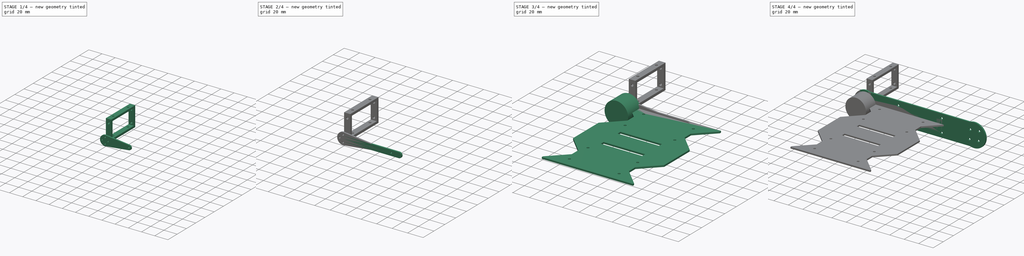
[diagram: build sequence overview — one tinted view per stage of 4, left to right]
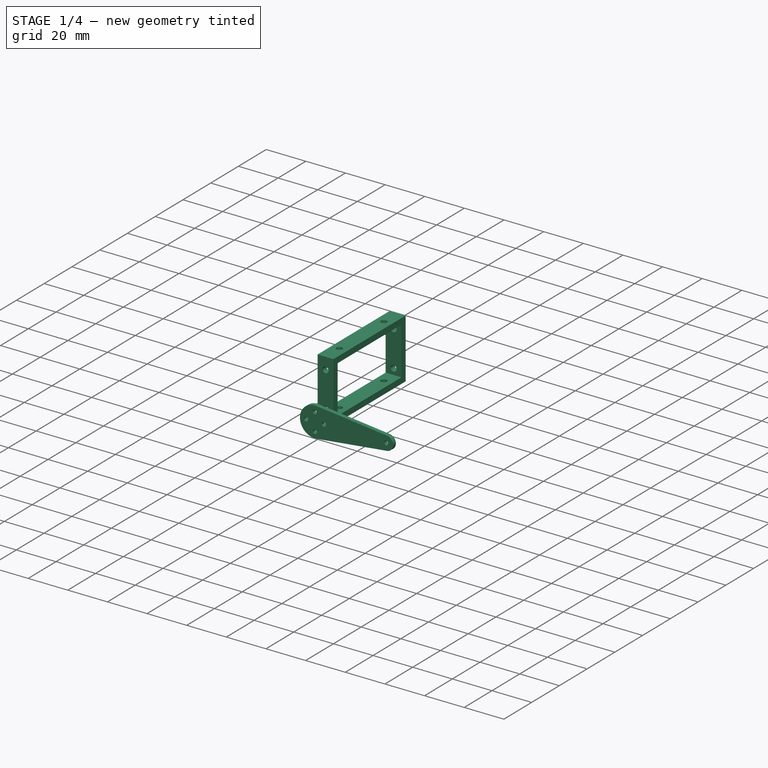
[diagram: stage 1 of 4 — iso view after this stage's code; geometry added in this stage tinted green]
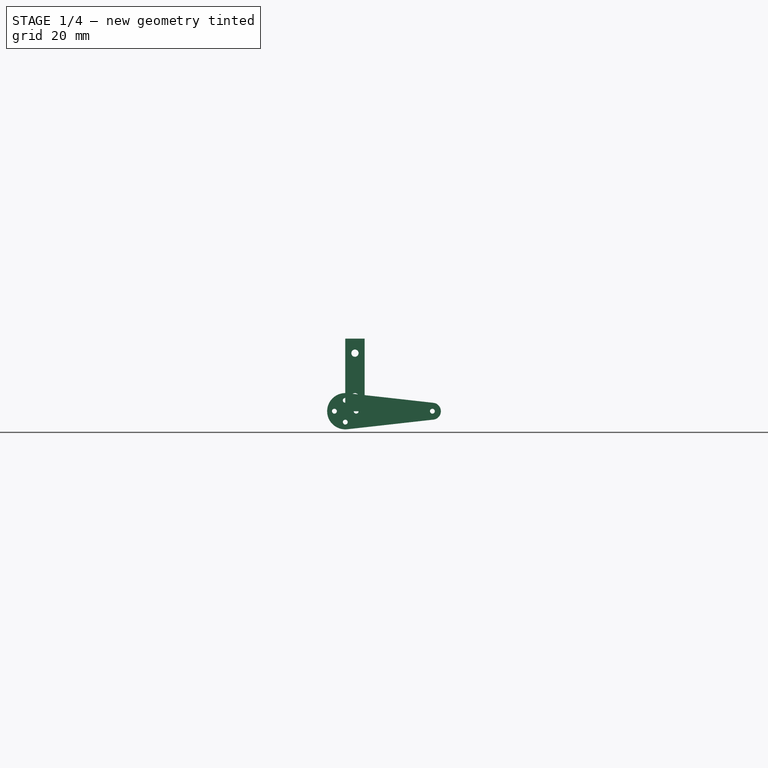
[diagram: stage 1 of 4 — front view after this stage's code; geometry added in this stage tinted green]
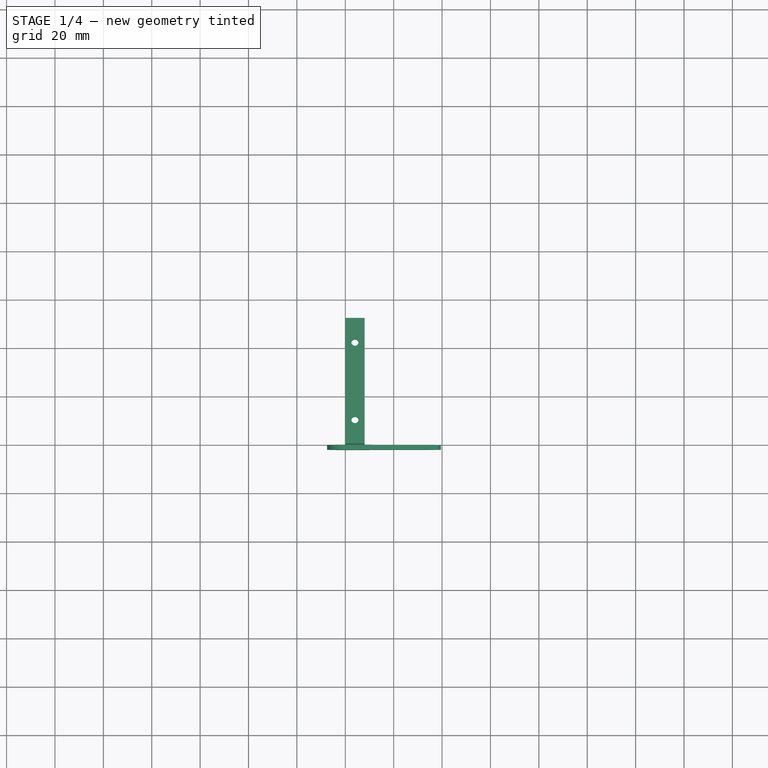
[diagram: stage 1 of 4 — top view after this stage's code; geometry added in this stage tinted green]
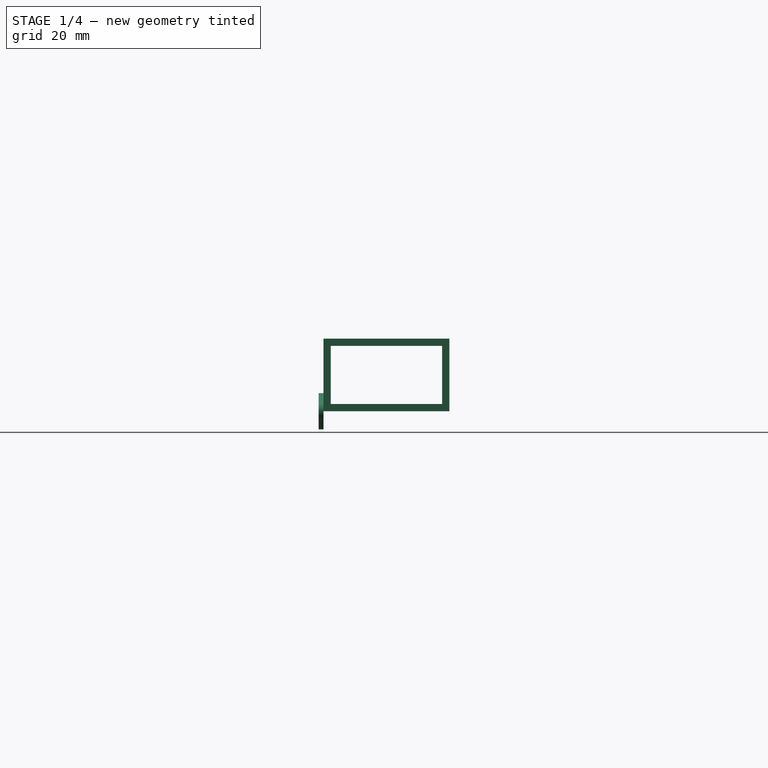
[diagram: stage 1 of 4 — right view after this stage's code; geometry added in this stage tinted green]
FCSTD DOCUMENT  (FreeCAD 0.18R16158 (Git))
Label: lorcan_mini
License: All rights reserved
LicenseURL: http://en.wikipedia.org/wiki/All_rights_reserved
objects: Sketcher::SketchObject×14, PartDesign::Pad×12, PartDesign::Body×12, App::Part×12, App::DocumentObjectGroup×2, PartDesign::Pocket×2
note: 54 computed .brp shape members not serialized (recipe doc carries the construction recipe); baked Part::Feature solids carry a one-line shape summary decoded from their .brp

FEATURE [PartDesign::Body] Body009
  Group = -> [Sketch009,Pad009]
  Origin = -> Origin019
  Tip = -> Pad009
FEATURE [App::Part] Part009  label="tibia2"
  Group = -> [Body009]
  Origin = -> Origin018
  Placement = pos=(-35.9973,-28,0.16315) rot=(0,-1,0;5.32325rad)
FEATURE [Sketcher::SketchObject] Sketch010
  MapMode = 5
  Placement = pos=(0,0,0) rot=(1,0,0;1.5708rad)
  Support = -> [XZ_Plane021]
  sketch-geometry (15):
    g0: Circle CenterX=-4.5 CenterY=0 CenterZ=0 NormalX=0 NormalY=0 NormalZ=1 AngleXU=0 Radius=1
    g1: Circle CenterX=4.5 CenterY=0 CenterZ=0 NormalX=0 NormalY=0 NormalZ=1 AngleXU=0 Radius=1
    g2: Circle CenterX=0 CenterY=4.5 CenterZ=0 NormalX=0 NormalY=0 NormalZ=1 AngleXU=0 Radius=1
    g3: Circle CenterX=0 CenterY=-4.5 CenterZ=0 NormalX=0 NormalY=0 NormalZ=1 AngleXU=0 Radius=1
    g4: LineSegment [constr] StartX=0 StartY=4.5 StartZ=0 EndX=0 EndY=-4.5 EndZ=0
    g5: LineSegment [constr] StartX=-4.5 StartY=0 StartZ=0 EndX=4.5 EndY=0 EndZ=0
    g6: LineSegment [constr] StartX=-4.5 StartY=0 StartZ=0 EndX=0 EndY=4.5 EndZ=0
    g7: LineSegment [constr] StartX=0 StartY=4.5 StartZ=0 EndX=4.5 EndY=0 EndZ=0
    g8: LineSegment [constr] StartX=4.5 StartY=0 StartZ=0 EndX=0 EndY=-4.5 EndZ=0
    g9: LineSegment [constr] StartX=0 StartY=-4.5 StartZ=0 EndX=-4.5 EndY=0 EndZ=0
    g10: ArcOfCircle CenterX=0 CenterY=0 CenterZ=0 NormalX=0 NormalY=0 NormalZ=1 AngleXU=0 Radius=7.5 StartAngle=1.45945 EndAngle=4.82373
    g11: LineSegment StartX=0.833363 StartY=7.45356 StartZ=0 EndX=36.3889 EndY=3.47833 EndZ=0
    g12: LineSegment StartX=0.833363 StartY=-7.45356 StartZ=0 EndX=36.3889 EndY=-3.47833 EndZ=0
    g13: ArcOfCircle CenterX=36 CenterY=0 CenterZ=0 NormalX=0 NormalY=0 NormalZ=1 AngleXU=0 Radius=3.5 StartAngle=4.82372 EndAngle=7.74265
    g14: Circle CenterX=36 CenterY=0 CenterZ=0 NormalX=0 NormalY=0 NormalZ=1 AngleXU=0 Radius=1
  constraints (39):
    c: Radius(g2) = 1
    c: Radius(g1) = 1
    c: Radius(g3) = 1
    c: Radius(g0) = 1
    c: Coincident(g1,g5)
    c: Coincident(g0,g5)
    c: Coincident(g2,g4)
    c: Coincident(g3,g4)
    c: Perpendicular(g5,g4)
    c: Parallel(g4,g-2)
    c: PointOnObject(g-1,g4)
    c: PointOnObject(g-1,g5)
    c: Coincident(g0,g9)
    c: Coincident(g0,g6)
    c: Coincident(g2,g6)
    c: Coincident(g2,g7)
    c: Coincident(g1,g7)
    c: Coincident(g1,g8)
    c: Coincident(g3,g8)
    c: Coincident(g3,g9)
    c: Equal(g7,g9)
    c: Equal(g6,g8)
    c: Perpendicular(g8,g7)
    c: DistanceX(g0,g1) = 9
    c: Coincident(g12,g13)
    c: Coincident(g11,g13)
    c: Coincident(g10,g11)
    c: Coincident(g10,g12)
    c: Coincident(g10,g-1)
    c: Tangent(g13,g11)
    c: Tangent(g13,g12)
    c: Tangent(g12,g10)
    c: Tangent(g11,g10)
    c: PointOnObject(g13,g-1)
    c: DistanceX(g10,g13) = 36
    c: Radius(g10) = 7.5
    c: Radius(g13) = 3.5
    c: Coincident(g13,g14)
    c: Radius(g14) = 1
FEATURE [PartDesign::Pad] Pad010
  Length = 2
  Length2 = 100
  Placement = pos=(0,0,0) rot=(1,0,0;1.5708rad)
  Profile = -> Sketch010
  Type = 0
FEATURE [PartDesign::Body] Body010
  Group = -> [Sketch010,Pad010]
  Origin = -> Origin021
  Tip = -> Pad010
FEATURE [App::Part] Part010  label="femur2"
  Group = -> [Body010]
  Origin = -> Origin020
  Placement = pos=(0,-30.5,0) rot=(0,1,0;3.14159rad)
FEATURE [Sketcher::SketchObject] Sketch011
  MapMode = 5
  Placement = pos=(0,0,0) rot=(0.57735,0.57735,0.57735;2.0944rad)
  Support = -> [YZ_Plane023]
  sketch-geometry (8):
    g0: LineSegment StartX=0 StartY=0 StartZ=0 EndX=52 EndY=0 EndZ=0
    g1: LineSegment StartX=52 StartY=0 StartZ=0 EndX=52 EndY=30 EndZ=0
    g2: LineSegment StartX=52 StartY=30 StartZ=0 EndX=0 EndY=30 EndZ=0
    g3: LineSegment StartX=0 StartY=30 StartZ=0 EndX=0 EndY=0 EndZ=0
    g4: LineSegment StartX=3 StartY=3 StartZ=0 EndX=49 EndY=3 EndZ=0
    g5: LineSegment StartX=49 StartY=3 StartZ=0 EndX=49 EndY=27 EndZ=0
    g6: LineSegment StartX=49 StartY=27 StartZ=0 EndX=3 EndY=27 EndZ=0
    g7: LineSegment StartX=3 StartY=27 StartZ=0 EndX=3 EndY=3 EndZ=0
  constraints (23):
    c: Coincident(g0,g1)
    c: Coincident(g1,g2)
    c: Coincident(g2,g3)
    c: Coincident(g3,g0)
    c: Horizontal(g0)
    c: Horizontal(g2)
    c: Vertical(g1)
    c: Vertical(g3)
    c: DistanceY(g3,g3) = 30
    c: DistanceX(g0,g0) = 52
    c: Coincident(g0,g-1)
    c: Coincident(g4,g5)
    c: Coincident(g5,g6)
    c: Coincident(g6,g7)
    c: Coincident(g7,g4)
    c: Horizontal(g4)
    c: Horizontal(g6)
    c: Vertical(g5)
    c: Vertical(g7)
    c: DistanceY(g0,g4) = 3
    c: DistanceY(g5,g1) = 3
    c: DistanceX(g5,g1) = 3
    c: DistanceX(g0,g4) = 3
FEATURE [PartDesign::Pad] Pad011
  Length = 8
  Length2 = 100
  Placement = pos=(0,0,0) rot=(0.57735,0.57735,0.57735;2.0944rad)
  Profile = -> Sketch011
  Type = 0
FEATURE [Sketcher::SketchObject] Sketch012
  ExternalGeometry = -> [Pad011]
  MapMode = 5
  Placement = pos=(2.31e-14,52,-1.73e-14) rot=(0.57735,0.57735,0.57735;4.18879rad)
  Support = -> [Pad011]
  sketch-geometry (2):
    g0: Circle CenterX=6 CenterY=4 CenterZ=0 NormalX=0 NormalY=0 NormalZ=1 AngleXU=0 Radius=1.5
    g1: Circle CenterX=24 CenterY=4 CenterZ=0 NormalX=0 NormalY=0 NormalZ=1 AngleXU=0 Radius=1.5
  constraints (6):
    c: Radius(g1) = 1.5
    c: Radius(g0) = 1.5
    c: DistanceY(g-6,g1) = 4
    c: DistanceY(g-1,g0) = 4
    c: DistanceX(g1,g-4) = 6
    c: DistanceX(g-5,g0) = 6
FEATURE [PartDesign::Pocket] Pocket
  BaseFeature = -> Pad011
  Length = 5
  Length2 = 100
  Placement = pos=(0,0,0) rot=(0.57735,0.57735,0.57735;2.0944rad)
  Profile = -> Sketch012
  Type = 1
FEATURE [Sketcher::SketchObject] Sketch013
  ExternalGeometry = -> [Pocket]
  MapMode = 5
  Placement = pos=(0,0,0) rot=(0.707107,0.707107,0;3.14159rad)
  Support = -> [Pocket]
  sketch-geometry (2):
    g0: Circle CenterX=10 CenterY=4 CenterZ=0 NormalX=0 NormalY=0 NormalZ=1 AngleXU=0 Radius=1.5
    g1: Circle CenterX=42 CenterY=4 CenterZ=0 NormalX=0 NormalY=0 NormalZ=1 AngleXU=0 Radius=1.5
  constraints (6):
    c: Radius(g0) = 1.5
    c: Radius(g1) = 1.5
    c: DistanceY(g0,g-3) = 4
    c: DistanceX(g-1,g0) = 10
    c: DistanceX(g1,g-4) = 10
    c: DistanceY(g1,g-3) = 4
FEATURE [PartDesign::Pocket] Pocket001
  BaseFeature = -> Pocket
  Length = 5
  Length2 = 100
  Placement = pos=(0,0,0) rot=(0.57735,0.57735,0.57735;2.0944rad)
  Profile = -> Sketch013
  Type = 1
FEATURE [PartDesign::Body] Body011
  Group = -> [Sketch011,Pad011,Sketch012,Pocket,Sketch013,Pocket001]
  Origin = -> Origin023
  Tip = -> Pocket001
FEATURE [App::Part] Part011  label="frame"
  Group = -> [Body011]
  Origin = -> Origin022
  Placement = pos=(101,-54,-15) rot=(0,0,1;0rad)
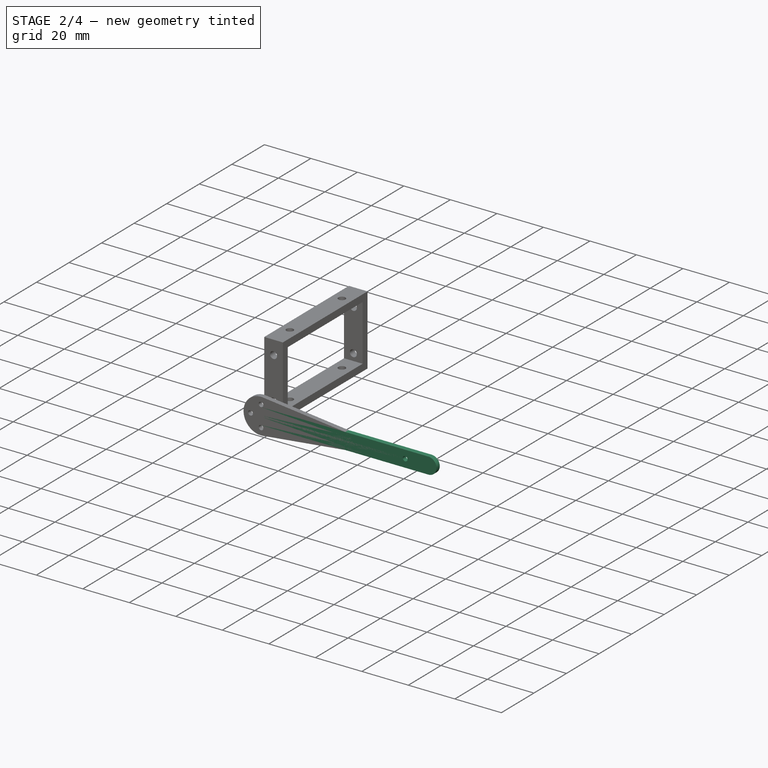
[diagram: stage 2 of 4 — iso view after this stage's code; geometry added in this stage tinted green]
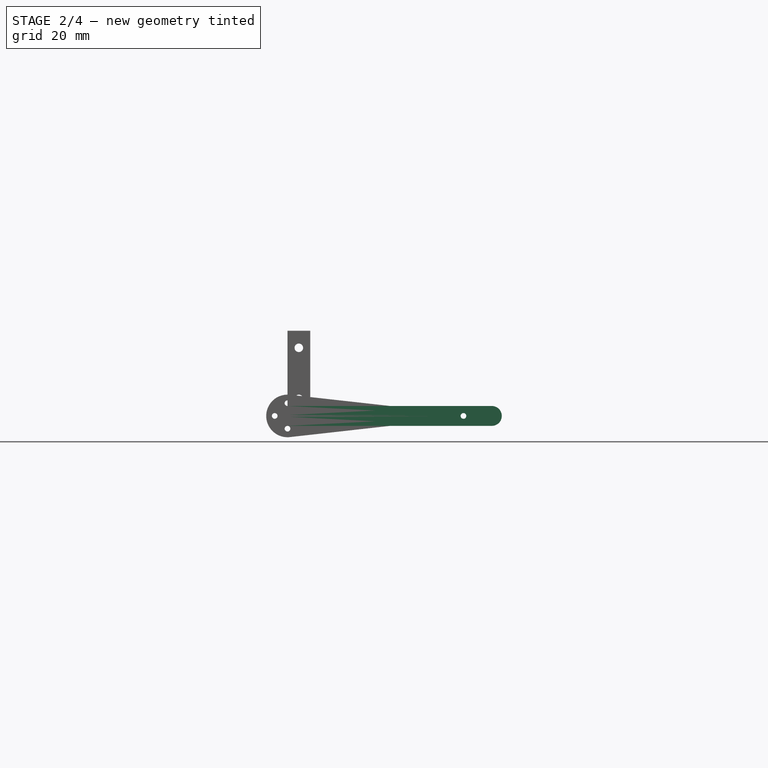
[diagram: stage 2 of 4 — front view after this stage's code; geometry added in this stage tinted green]
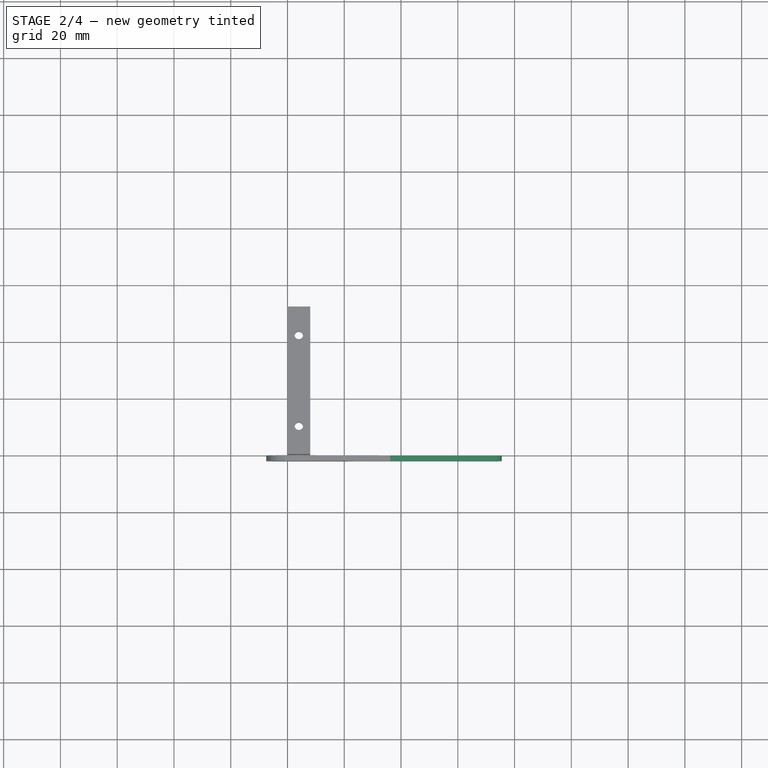
[diagram: stage 2 of 4 — top view after this stage's code; geometry added in this stage tinted green]
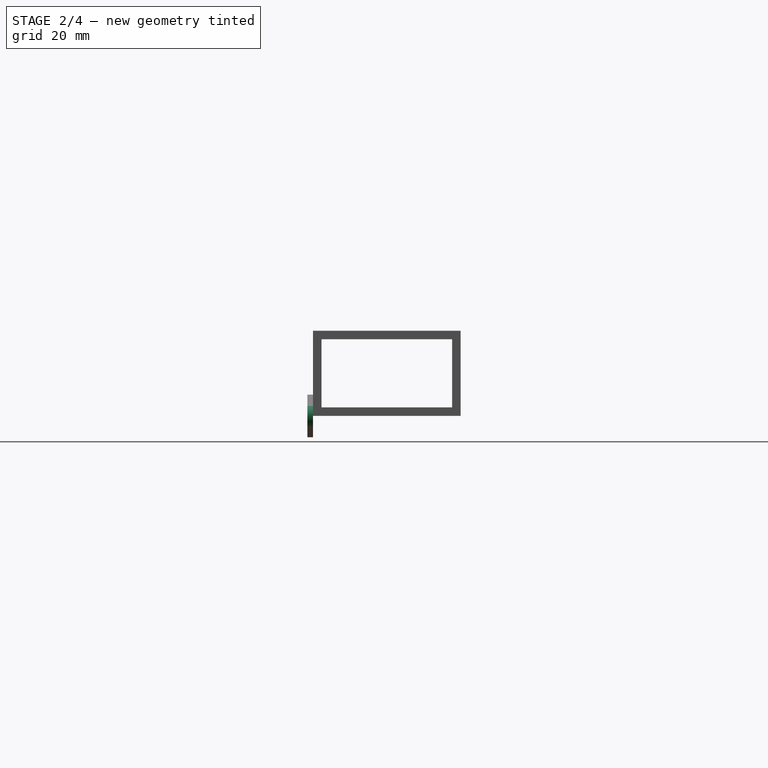
[diagram: stage 2 of 4 — right view after this stage's code; geometry added in this stage tinted green]
FEATURE [PartDesign::Body] Body006
  Group = -> [Sketch006,Pad006]
  Origin = -> Origin013
  Tip = -> Pad006
FEATURE [App::Part] Part006  label="plate"
  Group = -> [Body006]
  Origin = -> Origin012
  Placement = pos=(20,-2,15) rot=(0,0,1;0rad)
FEATURE [Sketcher::SketchObject] Sketch007
  MapMode = 5
  Placement = pos=(0,0,0) rot=(1,0,0;1.5708rad)
  Support = -> [XZ_Plane015]
  sketch-geometry (15):
    g0: Circle CenterX=-4.5 CenterY=0 CenterZ=0 NormalX=0 NormalY=0 NormalZ=1 AngleXU=0 Radius=1
    g1: Circle CenterX=4.5 CenterY=0 CenterZ=0 NormalX=0 NormalY=0 NormalZ=1 AngleXU=0 Radius=1
    g2: Circle CenterX=0 CenterY=4.5 CenterZ=0 NormalX=0 NormalY=0 NormalZ=1 AngleXU=0 Radius=1
    g3: Circle CenterX=0 CenterY=-4.5 CenterZ=0 NormalX=0 NormalY=0 NormalZ=1 AngleXU=0 Radius=1
    g4: LineSegment [constr] StartX=0 StartY=4.5 StartZ=0 EndX=0 EndY=-4.5 EndZ=0
    g5: LineSegment [constr] StartX=-4.5 StartY=0 StartZ=0 EndX=4.5 EndY=0 EndZ=0
    g6: LineSegment [constr] StartX=-4.5 StartY=0 StartZ=0 EndX=0 EndY=4.5 EndZ=0
    g7: LineSegment [constr] StartX=0 StartY=4.5 StartZ=0 EndX=4.5 EndY=0 EndZ=0
    g8: LineSegment [constr] StartX=4.5 StartY=0 StartZ=0 EndX=0 EndY=-4.5 EndZ=0
    g9: LineSegment [constr] StartX=0 StartY=-4.5 StartZ=0 EndX=-4.5 EndY=0 EndZ=0
    g10: ArcOfCircle CenterX=0 CenterY=0 CenterZ=0 NormalX=0 NormalY=0 NormalZ=1 AngleXU=0 Radius=7.5 StartAngle=1.45945 EndAngle=4.82373
    g11: LineSegment StartX=0.833363 StartY=7.45356 StartZ=0 EndX=36.3889 EndY=3.47833 EndZ=0
    g12: LineSegment StartX=0.833363 StartY=-7.45356 StartZ=0 EndX=36.3889 EndY=-3.47833 EndZ=0
    g13: ArcOfCircle CenterX=36 CenterY=0 CenterZ=0 NormalX=0 NormalY=0 NormalZ=1 AngleXU=0 Radius=3.5 StartAngle=4.82372 EndAngle=7.74265
    g14: Circle CenterX=36 CenterY=0 CenterZ=0 NormalX=0 NormalY=0 NormalZ=1 AngleXU=0 Radius=1
  constraints (39):
    c: Radius(g2) = 1
    c: Radius(g1) = 1
    c: Radius(g3) = 1
    c: Radius(g0) = 1
    c: Coincident(g1,g5)
    c: Coincident(g0,g5)
    c: Coincident(g2,g4)
    c: Coincident(g3,g4)
    c: Perpendicular(g5,g4)
    c: Parallel(g4,g-2)
    c: PointOnObject(g-1,g4)
    c: PointOnObject(g-1,g5)
    c: Coincident(g0,g9)
    c: Coincident(g0,g6)
    c: Coincident(g2,g6)
    c: Coincident(g2,g7)
    c: Coincident(g1,g7)
    c: Coincident(g1,g8)
    c: Coincident(g3,g8)
    c: Coincident(g3,g9)
    c: Equal(g7,g9)
    c: Equal(g6,g8)
    c: Perpendicular(g8,g7)
    c: DistanceX(g0,g1) = 9
    c: Coincident(g12,g13)
    c: Coincident(g11,g13)
    c: Coincident(g10,g11)
    c: Coincident(g10,g12)
    c: Coincident(g10,g-1)
    c: Tangent(g13,g11)
    c: Tangent(g13,g12)
    c: Tangent(g12,g10)
    c: Tangent(g11,g10)
    c: PointOnObject(g13,g-1)
    c: DistanceX(g10,g13) = 36
    c: Radius(g10) = 7.5
    c: Radius(g13) = 3.5
    c: Coincident(g13,g14)
    c: Radius(g14) = 1
FEATURE [PartDesign::Pad] Pad007
  Length = 2
  Length2 = 100
  Placement = pos=(0,0,0) rot=(1,0,0;1.5708rad)
  Profile = -> Sketch007
  Type = 0
FEATURE [PartDesign::Body] Body007
  Group = -> [Sketch007,Pad007]
  Origin = -> Origin015
  Tip = -> Pad007
FEATURE [App::Part] Part007  label="femur1"
  Group = -> [Body007]
  Origin = -> Origin014
  Placement = pos=(0,-23,0) rot=(0,0,1;0rad)
FEATURE [Sketcher::SketchObject] Sketch008
  MapMode = 5
  Placement = pos=(0,0,0) rot=(1,0,0;1.5708rad)
  Support = -> [XZ_Plane017]
  sketch-geometry (8):
    g0: ArcOfCircle CenterX=0 CenterY=0 CenterZ=0 NormalX=0 NormalY=0 NormalZ=1 AngleXU=0 Radius=3.5 StartAngle=1.57079 EndAngle=4.71239
    g1: ArcOfCircle CenterX=72 CenterY=0 CenterZ=0 NormalX=0 NormalY=0 NormalZ=1 AngleXU=0 Radius=3.5 StartAngle=4.71239 EndAngle=7.85398
    g2: LineSegment StartX=1.71765e-05 StartY=3.5 StartZ=0 EndX=66 EndY=3.5 EndZ=0
    g3: LineSegment StartX=66 StartY=3.5 StartZ=0 EndX=72 EndY=3.5 EndZ=0
    g4: LineSegment StartX=66 StartY=-3.5 StartZ=0 EndX=72 EndY=-3.5 EndZ=0
    g5: LineSegment StartX=66 StartY=-3.5 StartZ=0 EndX=1.71765e-05 EndY=-3.5 EndZ=0
    g6: Circle CenterX=0 CenterY=0 CenterZ=0 NormalX=0 NormalY=0 NormalZ=1 AngleXU=0 Radius=1
    g7: Circle CenterX=62 CenterY=0 CenterZ=0 NormalX=0 NormalY=0 NormalZ=1 AngleXU=0 Radius=1
  constraints (24):
    c: Coincident(g0,g2)
    c: Coincident(g2,g3)
    c: Coincident(g1,g3)
    c: Coincident(g1,g4)
    c: Coincident(g4,g5)
    c: Coincident(g0,g5)
    c: Coincident(g0,g-1)
    c: PointOnObject(g1,g-1)
    c: Parallel(g3,g4)
    c: Radius(g1) = 3.5
    c: Radius(g0) = 3.5
    c: Tangent(g2,g0)
    c: Tangent(g5,g0)
    c: Parallel(g3,g-1)
    c: Tangent(g1,g3)
    c: Tangent(g1,g4)
    c: DistanceX(g3,g3) = 6
    c: Equal(g3,g4)
    c: DistanceX(g0,g1) = 72
    c: Coincident(g0,g6)
    c: Radius(g6) = 1
    c: PointOnObject(g7,g-1)
    c: Radius(g7) = 1
    c: DistanceX(g0,g7) = 62
FEATURE [PartDesign::Pad] Pad008
  Length = 2
  Length2 = 100
  Placement = pos=(0,0,0) rot=(1,0,0;1.5708rad)
  Profile = -> Sketch008
  Type = 0
FEATURE [PartDesign::Body] Body008
  Group = -> [Sketch008,Pad008]
  Origin = -> Origin017
  Tip = -> Pad008
FEATURE [App::Part] Part008  label="tibia1"
  Group = -> [Body008]
  Origin = -> Origin016
  Placement = pos=(36.438,-25.5,-0.360018) rot=(0,-1,0;4.10152rad)
FEATURE [Sketcher::SketchObject] Sketch009
  MapMode = 5
  Placement = pos=(0,0,0) rot=(1,0,0;1.5708rad)
  Support = -> [XZ_Plane019]
  sketch-geometry (6):
    g0: ArcOfCircle CenterX=0 CenterY=0 CenterZ=0 NormalX=0 NormalY=0 NormalZ=1 AngleXU=0 Radius=3.5 StartAngle=1.57079 EndAngle=4.71239
    g1: ArcOfCircle CenterX=62 CenterY=0 CenterZ=0 NormalX=0 NormalY=0 NormalZ=1 AngleXU=0 Radius=3.5 StartAngle=4.71238 EndAngle=7.85399
    g2: LineSegment StartX=1.90906e-05 StartY=3.5 StartZ=0 EndX=62 EndY=3.5 EndZ=0
    g3: LineSegment StartX=1.90905e-05 StartY=-3.5 StartZ=0 EndX=62 EndY=-3.5 EndZ=0
    g4: Circle CenterX=0 CenterY=0 CenterZ=0 NormalX=0 NormalY=0 NormalZ=1 AngleXU=0 Radius=1
    g5: Circle CenterX=62 CenterY=0 CenterZ=0 NormalX=0 NormalY=0 NormalZ=1 AngleXU=0 Radius=1
  constraints (17):
    c: Coincident(g0,g2)
    c: Coincident(g0,g3)
    c: Coincident(g0,g-1)
    c: Coincident(g1,g2)
    c: Coincident(g1,g3)
    c: PointOnObject(g1,g-1)
    c: Tangent(g0,g2)
    c: Tangent(g0,g3)
    c: Tangent(g2,g1)
    c: Tangent(g1,g3)
    c: Radius(g0) = 3.5
    c: Radius(g1) = 3.5
    c: DistanceX(g0,g1) = 62
    c: Coincident(g0,g4)
    c: Radius(g4) = 1
    c: Coincident(g1,g5)
    c: Radius(g5) = 1
FEATURE [PartDesign::Pad] Pad009
  Length = 2
  Length2 = 100
  Placement = pos=(0,0,0) rot=(1,0,0;1.5708rad)
  Profile = -> Sketch009
  Type = 0
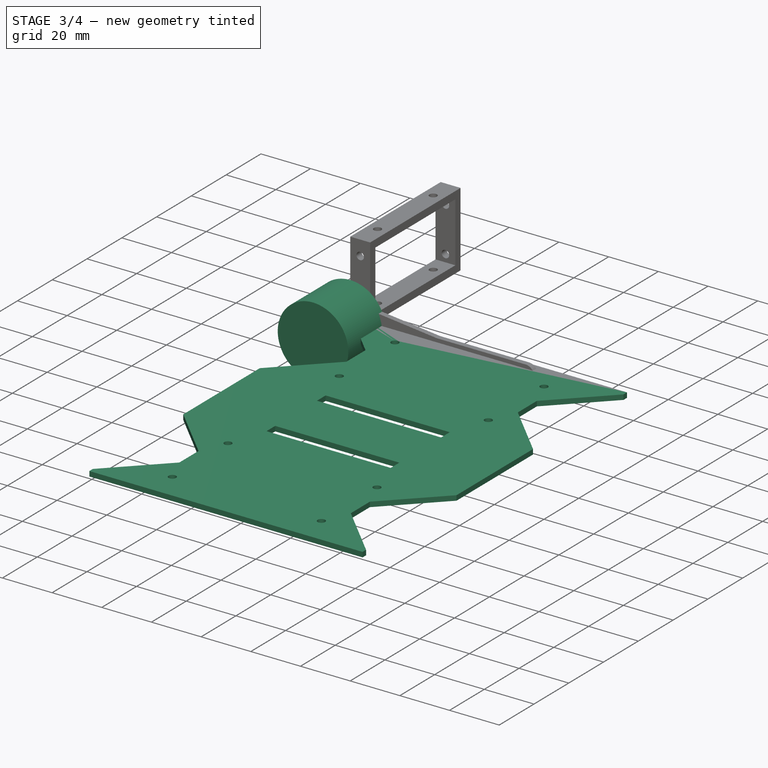
[diagram: stage 3 of 4 — iso view after this stage's code; geometry added in this stage tinted green]
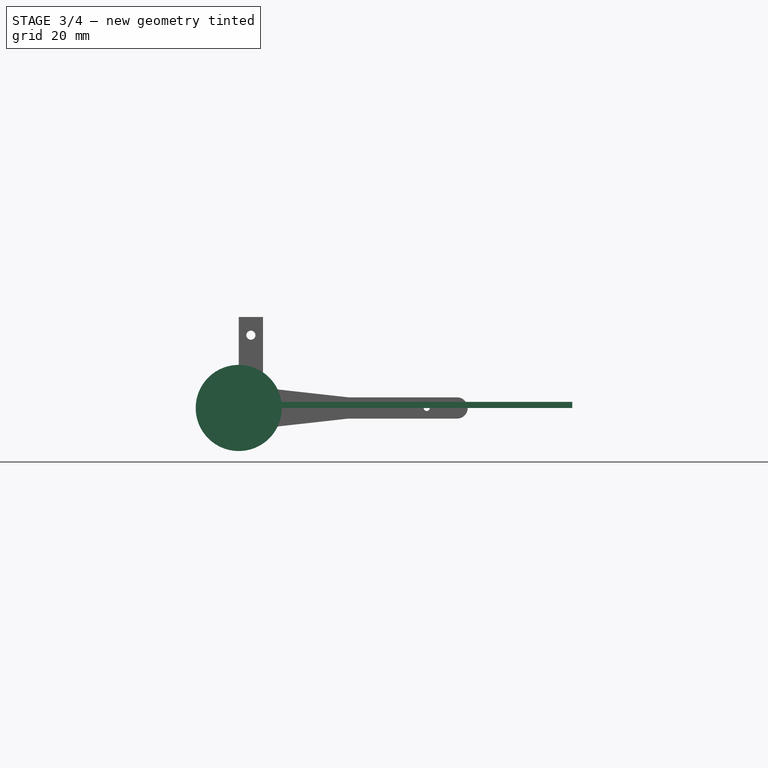
[diagram: stage 3 of 4 — front view after this stage's code; geometry added in this stage tinted green]
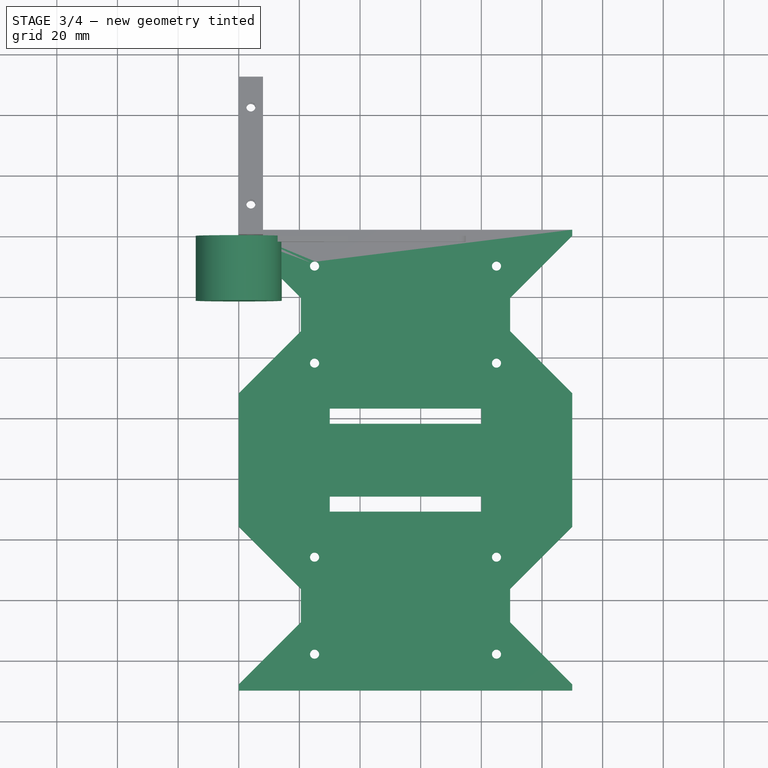
[diagram: stage 3 of 4 — top view after this stage's code; geometry added in this stage tinted green]
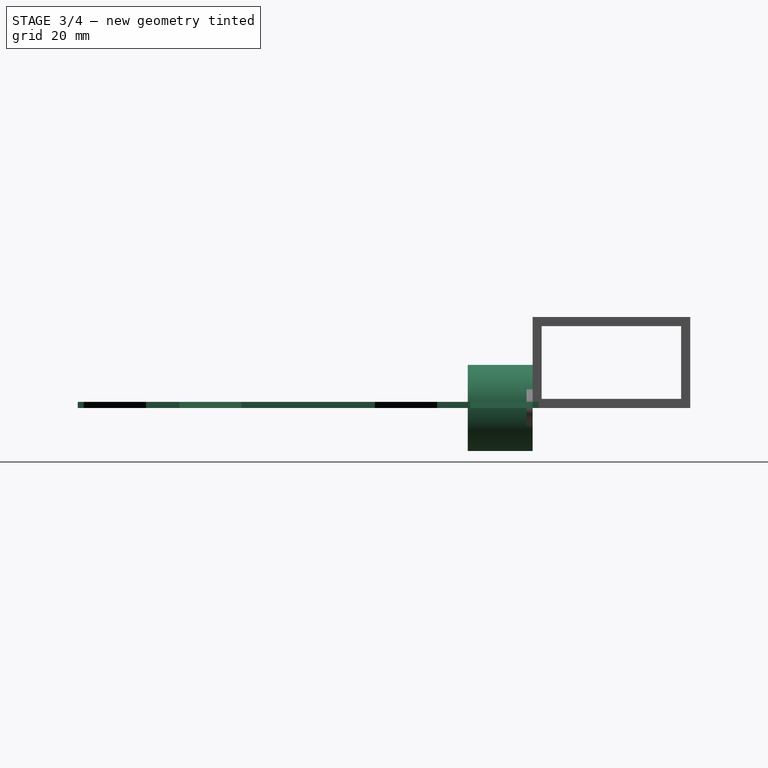
[diagram: stage 3 of 4 — right view after this stage's code; geometry added in this stage tinted green]
FEATURE [PartDesign::Body] Body003
  Group = -> [Sketch003,Pad003]
  Origin = -> Origin007
  Tip = -> Pad003
FEATURE [App::Part] Part003  label="bracket002"
  Group = -> [Body003]
  Origin = -> Origin006
  Placement = pos=(0,-54,0) rot=(0,0,1;0rad)
FEATURE [Sketcher::SketchObject] Sketch004
  MapMode = 5
  Placement = pos=(0,0,0) rot=(1,0,0;1.5708rad)
  Support = -> [XZ_Plane009]
  sketch-geometry (1):
    g0: Circle CenterX=0 CenterY=0 CenterZ=0 NormalX=0 NormalY=0 NormalZ=1 AngleXU=0 Radius=14.2
  constraints (2):
    c: Radius(g0) = 14.2
    c: Coincident(g0,g-1)
FEATURE [PartDesign::Pad] Pad004
  Length = 21.4
  Length2 = 100
  Placement = pos=(0,0,0) rot=(1,0,0;1.5708rad)
  Profile = -> Sketch004
  Type = 0
FEATURE [PartDesign::Body] Body005
  Group = -> [Sketch004,Pad004]
  Origin = -> Origin011
  Tip = -> Pad004
FEATURE [App::Part] Part004  label="motor003"
  Group = -> [Body005]
  Origin = -> Origin010
  Placement = pos=(0,-32.5,0) rot=(0,0,1;0rad)
FEATURE [Sketcher::SketchObject] Sketch005
  MapMode = 5
  Placement = pos=(0,0,0) rot=(1,0,0;1.5708rad)
  Support = -> [XZ_Plane011]
  sketch-geometry (1):
    g0: Circle CenterX=0 CenterY=0 CenterZ=0 NormalX=0 NormalY=0 NormalZ=1 AngleXU=0 Radius=14.2
  constraints (2):
    c: Radius(g0) = 14.2
    c: Coincident(g0,g-1)
FEATURE [PartDesign::Pad] Pad005
  Length = 21.4
  Length2 = 100
  Placement = pos=(0,0,0) rot=(1,0,0;1.5708rad)
  Profile = -> Sketch005
  Type = 0
FEATURE [PartDesign::Body] Body004
  Group = -> [Sketch005,Pad005]
  Origin = -> Origin009
  Tip = -> Pad005
FEATURE [App::Part] Part005  label="motor004"
  Group = -> [Body004]
  Origin = -> Origin008
  Placement = pos=(150,-32,0) rot=(0,0,1;0rad)
FEATURE [App::DocumentObjectGroup] Group001  label="group2"
  Group = -> [Part003,Part004,Part005]
FEATURE [Sketcher::SketchObject] Sketch006
  MapMode = 5
  Support = -> [XY_Plane013]
  sketch-geometry (41):
    g0: LineSegment StartX=0 StartY=0 StartZ=0 EndX=20.5 EndY=-20.5 EndZ=0
    g1: LineSegment StartX=20.5 StartY=-20.5 StartZ=0 EndX=20.5 EndY=-31.5 EndZ=0
    g2: LineSegment StartX=20.5 StartY=-31.5 StartZ=0 EndX=0 EndY=-52 EndZ=0
    g3: LineSegment StartX=110 StartY=0 StartZ=0 EndX=89.5 EndY=-20.5 EndZ=0
    g4: LineSegment StartX=89.5 StartY=-20.5 StartZ=0 EndX=89.5 EndY=-31.5 EndZ=0
    g5: LineSegment [constr] StartX=-1.4e-15 StartY=-52 StartZ=0 EndX=110 EndY=-52 EndZ=0
    g6: LineSegment [constr] StartX=20.5 StartY=-20.5 StartZ=0 EndX=89.5 EndY=-20.5 EndZ=0
    g7: LineSegment [constr] StartX=89.5 StartY=-20.5 StartZ=0 EndX=89.5 EndY=-31.5 EndZ=0
    g8: LineSegment [constr] StartX=89.5 StartY=-31.5 StartZ=0 EndX=20.5 EndY=-31.5 EndZ=0
    g9: LineSegment [constr] StartX=20.5 StartY=-31.5 StartZ=0 EndX=20.5 EndY=-20.5 EndZ=0
    g10: LineSegment StartX=0 StartY=0 StartZ=0 EndX=0 EndY=2 EndZ=0
    g11: LineSegment StartX=0 StartY=2 StartZ=0 EndX=110 EndY=2 EndZ=0
    g12: LineSegment StartX=110 StartY=2 StartZ=0 EndX=110 EndY=0 EndZ=0
    g13: LineSegment StartX=89.5 StartY=-31.5 StartZ=0 EndX=110 EndY=-52 EndZ=0
    g14: LineSegment StartX=-1.4e-15 StartY=-52 StartZ=0 EndX=-1.4e-15 EndY=-96 EndZ=0
    g15: LineSegment StartX=110 StartY=-52 StartZ=0 EndX=110 EndY=-96 EndZ=0
    g16: LineSegment StartX=110 StartY=-96 StartZ=0 EndX=89.5 EndY=-116.5 EndZ=0
    g17: LineSegment StartX=89.5 StartY=-116.5 StartZ=0 EndX=89.5 EndY=-127.5 EndZ=0
    g18: LineSegment StartX=89.5 StartY=-127.5 StartZ=0 EndX=110 EndY=-148 EndZ=0
    g19: LineSegment StartX=110 StartY=-148 StartZ=0 EndX=110 EndY=-150 EndZ=0
    g20: LineSegment StartX=110 StartY=-150 StartZ=0 EndX=0 EndY=-150 EndZ=0
    g21: LineSegment StartX=0 StartY=-150 StartZ=0 EndX=2.6e-15 EndY=-148 EndZ=0
    g22: LineSegment StartX=2.6e-15 StartY=-148 StartZ=0 EndX=20.5 EndY=-127.5 EndZ=0
    g23: LineSegment StartX=20.5 StartY=-127.5 StartZ=0 EndX=20.5 EndY=-116.5 EndZ=0
    g24: LineSegment StartX=20.5 StartY=-116.5 StartZ=0 EndX=0 EndY=-96 EndZ=0
    g25: Circle CenterX=25 CenterY=-10 CenterZ=0 NormalX=0 NormalY=0 NormalZ=1 AngleXU=0 Radius=1.5
    g26: Circle CenterX=25 CenterY=-42 CenterZ=0 NormalX=0 NormalY=0 NormalZ=1 AngleXU=0 Radius=1.5
    g27: Circle CenterX=85 CenterY=-10 CenterZ=0 NormalX=0 NormalY=0 NormalZ=1 AngleXU=0 Radius=1.5
    g28: Circle CenterX=85 CenterY=-42 CenterZ=0 NormalX=0 NormalY=0 NormalZ=1 AngleXU=0 Radius=1.5
    g29: Circle CenterX=25 CenterY=-138 CenterZ=0 NormalX=0 NormalY=0 NormalZ=1 AngleXU=0 Radius=1.5
    g30: Circle CenterX=25 CenterY=-106 CenterZ=0 NormalX=0 NormalY=0 NormalZ=1 AngleXU=0 Radius=1.5
    g31: Circle CenterX=85 CenterY=-106 CenterZ=0 NormalX=0 NormalY=0 NormalZ=1 AngleXU=0 Radius=1.5
    g32: Circle CenterX=85 CenterY=-138 CenterZ=0 NormalX=0 NormalY=0 NormalZ=1 AngleXU=0 Radius=1.5
    g33: LineSegment StartX=30 StartY=-62 StartZ=0 EndX=80 EndY=-62 EndZ=0
    g34: LineSegment StartX=80 StartY=-62 StartZ=0 EndX=80 EndY=-57 EndZ=0
    g35: LineSegment StartX=80 StartY=-57 StartZ=0 EndX=30 EndY=-57 EndZ=0
    g36: LineSegment StartX=30 StartY=-57 StartZ=0 EndX=30 EndY=-62 EndZ=0
    g37: LineSegment StartX=30 StartY=-91 StartZ=0 EndX=80 EndY=-91 EndZ=0
    g38: LineSegment StartX=80 StartY=-91 StartZ=0 EndX=80 EndY=-86 EndZ=0
    g39: LineSegment StartX=80 StartY=-86 StartZ=0 EndX=30 EndY=-86 EndZ=0
    g40: LineSegment StartX=30 StartY=-86 StartZ=0 EndX=30 EndY=-91 EndZ=0
  constraints (119):
    c: Coincident(g0,g1)
    c: Coincident(g1,g2)
    c: Coincident(g3,g4)
    c: Parallel(g1,g4)
    c: Equal(g4,g1)
    c: Equal(g0,g3)
    c: Coincident(g2,g5)
    c: Coincident(g6,g7)
    c: Coincident(g7,g8)
    c: Coincident(g8,g9)
    c: Coincident(g9,g6)
    c: Horizontal(g6)
    c: Horizontal(g8)
    c: Vertical(g7)
    c: Vertical(g9)
    c: Coincident(g0,g6)
    c: Coincident(g4,g7)
    c: DistanceY(g2,g0) = 52
    c: DistanceY(g1,g1) = 11
    c: Coincident(g10,g11)
    c: Coincident(g0,g10)
    c: Coincident(g11,g12)
    c: Coincident(g3,g12)
    c: Parallel(g11,g-1)
    c: Perpendicular(g11,g10)
    c: Perpendicular(g11,g12)
    c: DistanceX(g11,g11) = 110
    c: DistanceY(g12,g12) = 2
    c: Equal(g12,g10)
    c: Coincident(g3,g6)
    c: Parallel(g5,g11)
    c: Angle(g11,g3) = 0.785398
    c: Angle(g2,g8) = 2.35619
    c: Coincident(g4,g13)
    c: Coincident(g5,g13)
    c: Equal(g3,g13)
    c: Angle(g8,g13) = 2.35619
    c: Coincident(g14,g24)
    c: Coincident(g15,g16)
    c: Coincident(g16,g17)
    c: Coincident(g17,g18)
    c: Coincident(g18,g19)
    c: Coincident(g19,g20)
    c: Coincident(g20,g21)
    c: Coincident(g21,g22)
    c: Coincident(g22,g23)
    c: Coincident(g23,g24)
    c: Coincident(g2,g14)
    c: Coincident(g5,g15)
    c: Equal(g15,g14)
    c: Parallel(g14,g-2)
    c: Parallel(g15,g14)
    c: Equal(g16,g24)
    c: Equal(g22,g18)
    c: Equal(g18,g16)
    c: Equal(g24,g22)
    c: Parallel(g17,g23)
    c: Angle(g24,g14) = 2.35619
    c: Angle(g15,g16) = 2.35619
    c: Angle(g21,g22) = 2.35619
    c: Angle(g18,g19) = 2.35619
    c: Perpendicular(g20,g21)
    c: Perpendicular(g20,g19)
    c: Parallel(g20,g11)
    c: Equal(g19,g21)
    c: Parallel(g23,g-2)
    c: Equal(g1,g23)
    c: Equal(g10,g21)
    c: DistanceY(g21,g14) = 52
    c: DistanceY(g14,g14) = 44
    c: Coincident(g0,g-1)
    c: Radius(g25) = 1.5
    c: Radius(g26) = 1.5
    c: DistanceX(g0,g25) = 25
    c: DistanceY(g25,g0) = 10
    c: DistanceY(g2,g26) = 10
    c: DistanceX(g2,g26) = 25
    c: Radius(g28) = 1.5
    c: Radius(g27) = 1.5
    c: DistanceX(g27,g11) = 25
    c: DistanceX(g28,g13) = 25
    c: DistanceY(g27,g3) = 10
    c: DistanceY(g13,g28) = 10
    c: Radius(g30) = 1.5
    c: Radius(g29) = 1.5
    c: DistanceX(g14,g30) = 25
    c: DistanceX(g21,g29) = 25
    c: DistanceY(g21,g29) = 10
    c: DistanceY(g30,g14) = 10
    c: Radius(g31) = 1.5
    c: Radius(g32) = 1.5
    c: DistanceX(g31,g15) = 25
    c: DistanceX(g32,g18) = 25
    c: DistanceY(g31,g15) = 10
    c: DistanceY(g18,g32) = 10
    c: Coincident(g33,g34)
    c: Coincident(g34,g35)
    c: Coincident(g35,g36)
    c: Coincident(g36,g33)
    c: Horizontal(g33)
    c: Horizontal(g35)
    c: Vertical(g34)
    c: Vertical(g36)
    c: Coincident(g37,g38)
    c: Coincident(g38,g39)
    c: Coincident(g39,g40)
    c: Coincident(g40,g37)
    c: Horizontal(g37)
    c: Horizontal(g39)
    c: Vertical(g38)
    c: Vertical(g40)
    c: DistanceX(g2,g35) = 30
    c: DistanceX(g34,g13) = 30
    c: DistanceY(g35,g2) = 5
    c: DistanceY(g36,g36) = 5
    c: DistanceY(g38,g38) = 5
    c: DistanceY(g15,g37) = 5
    c: DistanceX(g38,g15) = 30
    c: DistanceX(g14,g37) = 30
FEATURE [PartDesign::Pad] Pad006
  Length = 2
  Length2 = 100
  Profile = -> Sketch006
  Type = 0
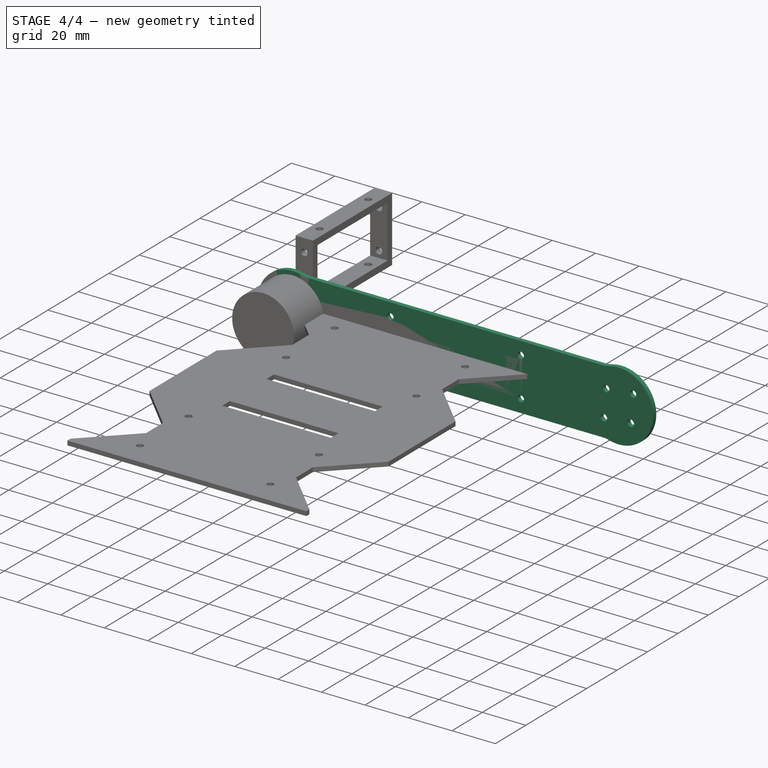
[diagram: stage 4 of 4 — iso view after this stage's code; geometry added in this stage tinted green]
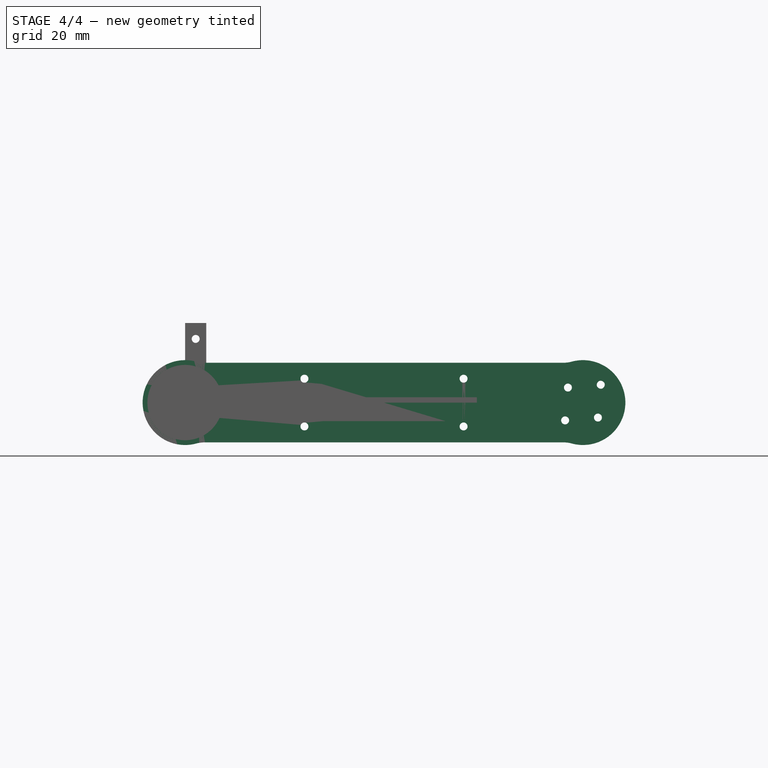
[diagram: stage 4 of 4 — front view after this stage's code; geometry added in this stage tinted green]
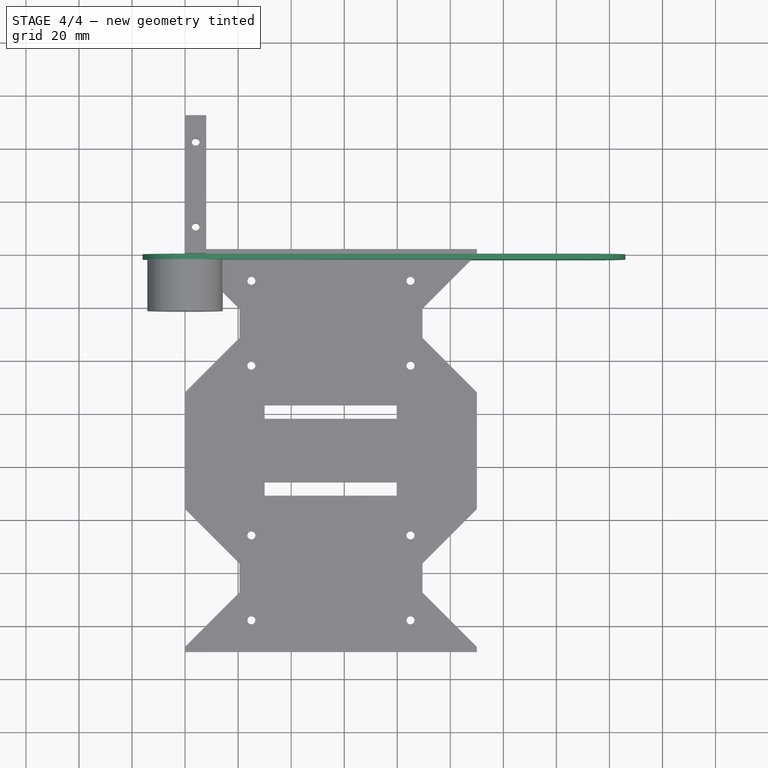
[diagram: stage 4 of 4 — top view after this stage's code; geometry added in this stage tinted green]
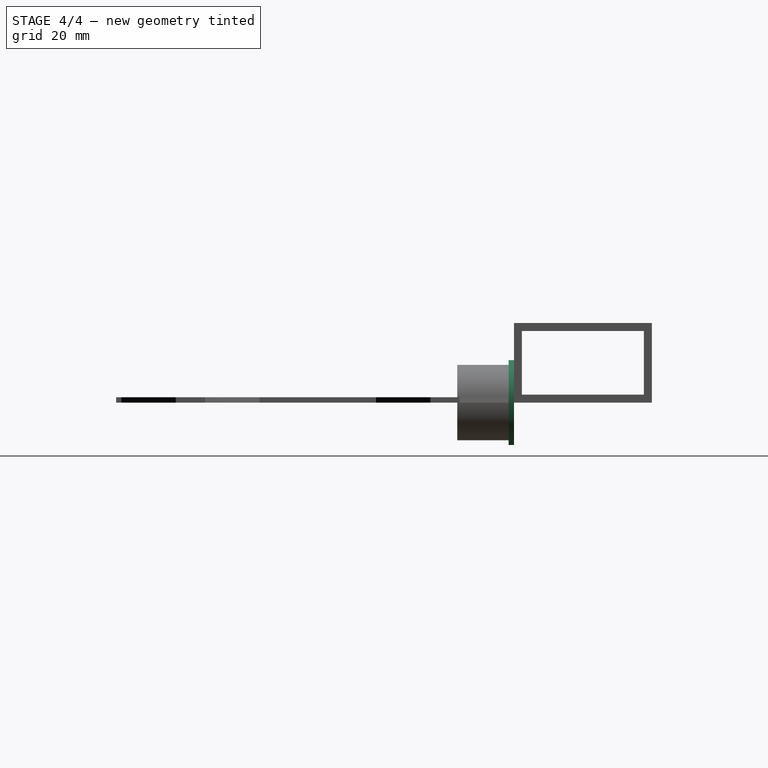
[diagram: stage 4 of 4 — right view after this stage's code; geometry added in this stage tinted green]
FEATURE [Sketcher::SketchObject] Sketch
  MapMode = 5
  Placement = pos=(0,0,0) rot=(1,0,0;1.5708rad)
  Support = -> [XZ_Plane001]
  sketch-geometry (39):
    g0: ArcOfCircle CenterX=0 CenterY=0 CenterZ=0 NormalX=0 NormalY=0 NormalZ=1 AngleXU=0 Radius=16 StartAngle=1.30569 EndAngle=4.97749
    g1: ArcOfCircle CenterX=150 CenterY=2.2e-15 CenterZ=0 NormalX=0 NormalY=0 NormalZ=1 AngleXU=0 Radius=16 StartAngle=4.44729 EndAngle=8.11908
    g2: LineSegment StartX=7.5 StartY=15 StartZ=0 EndX=142.5 EndY=15 EndZ=0
    g3: LineSegment StartX=142.5 StartY=-15 StartZ=0 EndX=7.5 EndY=-15 EndZ=0
    g4: ArcOfCircle CenterX=7.5 CenterY=27.625 CenterZ=0 NormalX=0 NormalY=0 NormalZ=1 AngleXU=0 Radius=12.625 StartAngle=4.44729 EndAngle=4.71239
    g5: ArcOfCircle CenterX=7.5 CenterY=-27.625 CenterZ=0 NormalX=0 NormalY=0 NormalZ=1 AngleXU=0 Radius=12.625 StartAngle=1.5708 EndAngle=1.8359
    g6: ArcOfCircle CenterX=142.5 CenterY=-27.625 CenterZ=0 NormalX=0 NormalY=0 NormalZ=1 AngleXU=0 Radius=12.625 StartAngle=1.30569 EndAngle=1.5708
    g7: ArcOfCircle CenterX=142.5 CenterY=27.625 CenterZ=0 NormalX=0 NormalY=0 NormalZ=1 AngleXU=0 Radius=12.625 StartAngle=4.71239 EndAngle=4.97749
    g8: LineSegment [constr] StartX=7.5 StartY=15 StartZ=0 EndX=142.5 EndY=-15 EndZ=0
    g9: LineSegment [constr] StartX=142.5 StartY=15 StartZ=0 EndX=7.5 EndY=-15 EndZ=0
    g10: GeomPoint X=75 Y=-3e-16 Z=0
    g11: LineSegment [constr] StartX=145.808 StartY=15.441 StartZ=0 EndX=4.19214 EndY=-15.441 EndZ=0
    g12: LineSegment [constr] StartX=4.19214 StartY=15.441 StartZ=0 EndX=145.808 EndY=-15.441 EndZ=0
    g13: Circle CenterX=-6.71751 CenterY=-6.71751 CenterZ=0 NormalX=0 NormalY=0 NormalZ=1 AngleXU=0 Radius=1.5
    g14: Circle CenterX=6.71751 CenterY=6.71751 CenterZ=0 NormalX=0 NormalY=0 NormalZ=1 AngleXU=0 Radius=1.5
    g15: Circle CenterX=5.65685 CenterY=-5.65685 CenterZ=0 NormalX=0 NormalY=0 NormalZ=1 AngleXU=0 Radius=1.5
    g16: Circle CenterX=-5.65685 CenterY=5.65685 CenterZ=0 NormalX=0 NormalY=0 NormalZ=1 AngleXU=0 Radius=1.5
    g17: LineSegment [constr] StartX=-5.65685 StartY=5.65685 StartZ=0 EndX=5.65685 EndY=-5.65685 EndZ=0
    g18: LineSegment [constr] StartX=-6.71751 StartY=-6.71751 StartZ=0 EndX=6.71751 EndY=6.71751 EndZ=0
    g19: LineSegment [constr] StartX=-5.65685 StartY=5.65685 StartZ=0 EndX=6.71751 EndY=6.71751 EndZ=0
    g20: LineSegment [constr] StartX=-6.71751 StartY=-6.71751 StartZ=0 EndX=5.65685 EndY=-5.65685 EndZ=0
    g21: Circle CenterX=143.282 CenterY=-6.71751 CenterZ=0 NormalX=0 NormalY=0 NormalZ=1 AngleXU=0 Radius=1.5
    g22: Circle CenterX=156.718 CenterY=6.71751 CenterZ=0 NormalX=0 NormalY=0 NormalZ=1 AngleXU=0 Radius=1.5
    g23: Circle CenterX=155.657 CenterY=-5.65685 CenterZ=0 NormalX=0 NormalY=0 NormalZ=1 AngleXU=0 Radius=1.5
    g24: Circle CenterX=144.343 CenterY=5.65685 CenterZ=0 NormalX=0 NormalY=0 NormalZ=1 AngleXU=0 Radius=1.5
    g25: LineSegment [constr] StartX=144.343 StartY=5.65685 StartZ=0 EndX=155.657 EndY=-5.65685 EndZ=0
    g26: LineSegment [constr] StartX=143.282 StartY=-6.71751 StartZ=0 EndX=156.718 EndY=6.71751 EndZ=0
    g27: LineSegment [constr] StartX=144.343 StartY=5.65685 StartZ=0 EndX=156.718 EndY=6.71751 EndZ=0
    g28: LineSegment [constr] StartX=143.282 StartY=-6.71751 StartZ=0 EndX=155.657 EndY=-5.65685 EndZ=0
    g29: Circle CenterX=105 CenterY=9 CenterZ=0 NormalX=0 NormalY=0 NormalZ=1 AngleXU=0 Radius=1.5
    g30: Circle CenterX=45 CenterY=9 CenterZ=0 NormalX=0 NormalY=0 NormalZ=1 AngleXU=0 Radius=1.5
    g31: Circle CenterX=45 CenterY=-9 CenterZ=0 NormalX=0 NormalY=0 NormalZ=1 AngleXU=0 Radius=1.5
    g32: Circle CenterX=105 CenterY=-9 CenterZ=0 NormalX=0 NormalY=0 NormalZ=1 AngleXU=0 Radius=1.5
    g33: LineSegment [constr] StartX=45 StartY=-9 StartZ=0 EndX=105 EndY=-9 EndZ=0
    g34: LineSegment [constr] StartX=105 StartY=-9 StartZ=0 EndX=105 EndY=9 EndZ=0
    g35: LineSegment [constr] StartX=105 StartY=9 StartZ=0 EndX=45 EndY=9 EndZ=0
    g36: LineSegment [constr] StartX=45 StartY=9 StartZ=0 EndX=45 EndY=-9 EndZ=0
    g37: LineSegment [constr] StartX=45 StartY=9 StartZ=0 EndX=105 EndY=-9 EndZ=0
    g38: LineSegment [constr] StartX=105 StartY=9 StartZ=0 EndX=45 EndY=-9 EndZ=0
  constraints (96):
    c: Parallel(g3,g-1)
    c: Parallel(g2,g-1)
    c: Radius(g0) = 16
    c: Radius(g1) = 16
    c: DistanceX(g0,g1) = 150
    c: Vertical(g0,g0)
    c: Vertical(g1,g1)
    c: Coincident(g-1,g0)
    c: Tangent(g0,g4) = 1.5708
    c: Tangent(g2,g4) = -1.5708
    c: Tangent(g3,g5) = -1.5708
    c: Tangent(g0,g5) = 1.5708
    c: DistanceY(g0,g2) = 15
    c: Tangent(g3,g6) = -1.5708
    c: Coincident(g1,g6)
    c: Tangent(g1,g7) = 1.5708
    c: Tangent(g2,g7) = -1.5708
    c: DistanceX(g2,g2) = 135
    c: Vertical(g2,g3)
    c: Coincident(g2,g8)
    c: Coincident(g3,g9)
    c: Coincident(g9,g2)
    c: Coincident(g8,g3)
    c: Equal(g9,g8)
    c: PointOnObject(g10,g9)
    c: PointOnObject(g10,g8)
    c: Coincident(g1,g11)
    c: Coincident(g12,g1)
    c: Coincident(g12,g0)
    c: Coincident(g11,g0)
    c: Equal(g11,g12)
    c: PointOnObject(g10,g11)
    c: Coincident(g13,g18)
    c: Coincident(g16,g17)
    c: Coincident(g15,g17)
    c: Coincident(g14,g18)
    c: PointOnObject(g0,g17)
    c: PointOnObject(g0,g18)
    c: Perpendicular(g17,g18)
    c: Angle(g-1,g18) = 0.785398
    c: Distance(g17) = 16
    c: Distance(g18) = 19
    c: Radius(g15) = 1.5
    c: Radius(g14) = 1.5
    c: Radius(g16) = 1.5
    c: Radius(g13) = 1.5
    c: Coincident(g20,g15)
    c: Coincident(g20,g13)
    c: Coincident(g19,g16)
    c: Coincident(g19,g14)
    c: Parallel(g19,g20)
    c: Equal(g19,g20)
    c: Coincident(g21,g26)
    c: Coincident(g24,g25)
    c: Coincident(g23,g25)
    c: Coincident(g22,g26)
    c: Perpendicular(g25,g26)
    c: Equal(g17,g25) = 16
    c: Equal(g18,g26) = 19
    c: Equal(g15,g23) = 1.5
    c: Equal(g14,g22) = 1.5
    c: Equal(g16,g24) = 1.5
    c: Equal(g13,g21) = 1.5
    c: Coincident(g28,g23)
    c: Coincident(g28,g21)
    c: Coincident(g27,g24)
    c: Coincident(g27,g22)
    c: Parallel(g27,g28)
    c: Equal(g27,g28)
    c: PointOnObject(g1,g26)
    c: PointOnObject(g1,g25)
    c: Angle(g25,g-1) = 0.785398
    c: Coincident(g33,g34)
    c: Coincident(g34,g35)
    c: Coincident(g35,g36)
    c: Coincident(g36,g33)
    c: Horizontal(g33)
    c: Horizontal(g35)
    c: Vertical(g34)
    c: Vertical(g36)
    c: Coincident(g29,g34)
    c: Coincident(g32,g33)
    c: Coincident(g31,g33)
    c: Coincident(g30,g35)
    c: DistanceY(g34,g34) = 18
    c: DistanceX(g35,g35) = 60
    c: Radius(g30) = 1.5
    c: Radius(g29) = 1.5
    c: Radius(g32) = 1.5
    c: Radius(g31) = 1.5
    c: Coincident(g31,g38)
    c: Coincident(g37,g32)
    c: Coincident(g29,g38)
    c: Coincident(g37,g30)
    c: PointOnObject(g10,g37)
    c: PointOnObject(g10,g38)
FEATURE [PartDesign::Pad] Pad
  Length = 2
  Length2 = 100
  Placement = pos=(0,0,0) rot=(1,0,0;1.5708rad)
  Profile = -> Sketch
  Type = 0
FEATURE [PartDesign::Body] Body
  Group = -> [Sketch,Pad]
  Origin = -> Origin001
  Tip = -> Pad
FEATURE [App::Part] Part  label="bracket1"
  Group = -> [Body]
  Origin = -> Origin
FEATURE [Sketcher::SketchObject] Sketch001
  MapMode = 5
  Placement = pos=(0,0,0) rot=(1,0,0;1.5708rad)
  Support = -> [XZ_Plane003]
  sketch-geometry (1):
    g0: Circle CenterX=0 CenterY=0 CenterZ=0 NormalX=0 NormalY=0 NormalZ=1 AngleXU=0 Radius=14.2
  constraints (2):
    c: Radius(g0) = 14.2
    c: Coincident(g0,g-1)
FEATURE [PartDesign::Pad] Pad001
  Length = 21.4
  Length2 = 100
  Placement = pos=(0,0,0) rot=(1,0,0;1.5708rad)
  Profile = -> Sketch001
  Type = 0
FEATURE [PartDesign::Body] Body001
  Group = -> [Sketch001,Pad001]
  Origin = -> Origin003
  Tip = -> Pad001
FEATURE [App::Part] Part001  label="motor1"
  Group = -> [Body001]
  Origin = -> Origin002
  Placement = pos=(0,-2,0) rot=(0,0,1;0rad)
FEATURE [Sketcher::SketchObject] Sketch002
  MapMode = 5
  Placement = pos=(0,0,0) rot=(1,0,0;1.5708rad)
  Support = -> [XZ_Plane004]
  sketch-geometry (1):
    g0: Circle CenterX=0 CenterY=0 CenterZ=0 NormalX=0 NormalY=0 NormalZ=1 AngleXU=0 Radius=14.2
  constraints (2):
    c: Radius(g0) = 14.2
    c: Coincident(g0,g-1)
FEATURE [PartDesign::Pad] Pad002
  Length = 21.4
  Length2 = 100
  Placement = pos=(0,0,0) rot=(1,0,0;1.5708rad)
  Profile = -> Sketch002
  Type = 0
FEATURE [PartDesign::Body] Body002
  Group = -> [Sketch002,Pad002]
  Origin = -> Origin005
  Tip = -> Pad002
FEATURE [App::Part] Part002  label="motor2"
  Group = -> [Body002]
  Origin = -> Origin004
  Placement = pos=(150,-2,0) rot=(0,0,1;0rad)
FEATURE [App::DocumentObjectGroup] Group  label="group1"
  Group = -> [Part,Part001,Part002]
FEATURE [Sketcher::SketchObject] Sketch003
  MapMode = 5
  Placement = pos=(0,0,0) rot=(1,0,0;1.5708rad)
  Support = -> [XZ_Plane007]
  sketch-geometry (45):
    g0: ArcOfCircle CenterX=0 CenterY=1e-16 CenterZ=0 NormalX=0 NormalY=0 NormalZ=1 AngleXU=0 Radius=16 StartAngle=1.30569 EndAngle=4.97749
    g1: ArcOfCircle CenterX=150 CenterY=-3.8e-15 CenterZ=0 NormalX=0 NormalY=0 NormalZ=1 AngleXU=0 Radius=16 StartAngle=4.44729 EndAngle=8.11908
    g2: LineSegment StartX=7.5 StartY=15 StartZ=0 EndX=142.5 EndY=15 EndZ=0
    g3: LineSegment StartX=142.5 StartY=-15 StartZ=0 EndX=7.5 EndY=-15 EndZ=0
    g4: ArcOfCircle CenterX=7.5 CenterY=27.625 CenterZ=0 NormalX=0 NormalY=0 NormalZ=1 AngleXU=0 Radius=12.625 StartAngle=4.44729 EndAngle=4.71239
    g5: ArcOfCircle CenterX=7.5 CenterY=-27.625 CenterZ=0 NormalX=0 NormalY=0 NormalZ=1 AngleXU=0 Radius=12.625 StartAngle=1.5708 EndAngle=1.8359
    g6: ArcOfCircle CenterX=142.5 CenterY=-27.625 CenterZ=0 NormalX=0 NormalY=0 NormalZ=1 AngleXU=0 Radius=12.625 StartAngle=1.30569 EndAngle=1.5708
    g7: ArcOfCircle CenterX=142.5 CenterY=27.625 CenterZ=0 NormalX=0 NormalY=0 NormalZ=1 AngleXU=0 Radius=12.625 StartAngle=4.71239 EndAngle=4.97749
    g8: LineSegment [constr] StartX=7.5 StartY=15 StartZ=0 EndX=142.5 EndY=-15 EndZ=0
    g9: LineSegment [constr] StartX=142.5 StartY=15 StartZ=0 EndX=7.5 EndY=-15 EndZ=0
    g10: GeomPoint X=75 Y=1.1e-15 Z=0
    g11: LineSegment [constr] StartX=145.808 StartY=15.441 StartZ=0 EndX=4.19214 EndY=-15.441 EndZ=0
    g12: LineSegment [constr] StartX=4.19214 StartY=15.441 StartZ=0 EndX=145.808 EndY=-15.441 EndZ=0
    g13: Circle CenterX=-6.71751 CenterY=-6.71751 CenterZ=0 NormalX=0 NormalY=0 NormalZ=1 AngleXU=0 Radius=1.5
    g14: Circle CenterX=6.71751 CenterY=6.71751 CenterZ=0 NormalX=0 NormalY=0 NormalZ=1 AngleXU=0 Radius=1.5
    g15: Circle CenterX=5.65685 CenterY=-5.65685 CenterZ=0 NormalX=0 NormalY=0 NormalZ=1 AngleXU=0 Radius=1.5
    g16: Circle CenterX=-5.65685 CenterY=5.65685 CenterZ=0 NormalX=0 NormalY=0 NormalZ=1 AngleXU=0 Radius=1.5
    g17: LineSegment [constr] StartX=-5.65685 StartY=5.65685 StartZ=0 EndX=5.65685 EndY=-5.65685 EndZ=0
    g18: LineSegment [constr] StartX=-6.71751 StartY=-6.71751 StartZ=0 EndX=6.71751 EndY=6.71751 EndZ=0
    g19: LineSegment [constr] StartX=-5.65685 StartY=5.65685 StartZ=0 EndX=6.71751 EndY=6.71751 EndZ=0
    g20: LineSegment [constr] StartX=-6.71751 StartY=-6.71751 StartZ=0 EndX=5.65685 EndY=-5.65685 EndZ=0
    g21: Circle CenterX=143.282 CenterY=-6.71751 CenterZ=0 NormalX=0 NormalY=0 NormalZ=1 AngleXU=0 Radius=1.5
    g22: Circle CenterX=156.718 CenterY=6.71751 CenterZ=0 NormalX=0 NormalY=0 NormalZ=1 AngleXU=0 Radius=1.5
    g23: Circle CenterX=155.657 CenterY=-5.65685 CenterZ=0 NormalX=0 NormalY=0 NormalZ=1 AngleXU=0 Radius=1.5
    g24: Circle CenterX=144.343 CenterY=5.65685 CenterZ=0 NormalX=0 NormalY=0 NormalZ=1 AngleXU=0 Radius=1.5
    g25: LineSegment [constr] StartX=144.343 StartY=5.65685 StartZ=0 EndX=155.657 EndY=-5.65685 EndZ=0
    g26: LineSegment [constr] StartX=143.282 StartY=-6.71751 StartZ=0 EndX=156.718 EndY=6.71751 EndZ=0
    g27: LineSegment [constr] StartX=144.343 StartY=5.65685 StartZ=0 EndX=156.718 EndY=6.71751 EndZ=0
    g28: LineSegment [constr] StartX=143.282 StartY=-6.71751 StartZ=0 EndX=155.657 EndY=-5.65685 EndZ=0
    g29: Circle CenterX=105 CenterY=9 CenterZ=0 NormalX=0 NormalY=0 NormalZ=1 AngleXU=0 Radius=1.5
    g30: Circle CenterX=45 CenterY=9 CenterZ=0 NormalX=0 NormalY=0 NormalZ=1 AngleXU=0 Radius=1.5
    g31: Circle CenterX=45 CenterY=-9 CenterZ=0 NormalX=0 NormalY=0 NormalZ=1 AngleXU=0 Radius=1.5
    g32: Circle CenterX=105 CenterY=-9 CenterZ=0 NormalX=0 NormalY=0 NormalZ=1 AngleXU=0 Radius=1.5
    g33: LineSegment [constr] StartX=45 StartY=-9 StartZ=0 EndX=105 EndY=-9 EndZ=0
    g34: LineSegment [constr] StartX=105 StartY=-9 StartZ=0 EndX=105 EndY=9 EndZ=0
    g35: LineSegment [constr] StartX=105 StartY=9 StartZ=0 EndX=45 EndY=9 EndZ=0
    g36: LineSegment [constr] StartX=45 StartY=9 StartZ=0 EndX=45 EndY=-9 EndZ=0
    g37: LineSegment [constr] StartX=45 StartY=9 StartZ=0 EndX=105 EndY=-9 EndZ=0
    g38: LineSegment [constr] StartX=105 StartY=9 StartZ=0 EndX=45 EndY=-9 EndZ=0
    g39: LineSegment StartX=52 StartY=7 StartZ=0 EndX=98 EndY=7 EndZ=0
    g40: LineSegment StartX=98 StartY=7 StartZ=0 EndX=98 EndY=-7 EndZ=0
    g41: LineSegment StartX=98 StartY=-7 StartZ=0 EndX=52 EndY=-7 EndZ=0
    g42: LineSegment StartX=52 StartY=-7 StartZ=0 EndX=52 EndY=7 EndZ=0
    g43: LineSegment [constr] StartX=52 StartY=7 StartZ=0 EndX=98 EndY=-7 EndZ=0
    g44: LineSegment [constr] StartX=98 StartY=7 StartZ=0 EndX=52 EndY=-7 EndZ=0
  constraints (112):
    c: Parallel(g3,g-1)
    c: Parallel(g2,g-1)
    c: Radius(g0) = 16
    c: Radius(g1) = 16
    c: DistanceX(g0,g1) = 150
    c: Vertical(g0,g0)
    c: Vertical(g1,g1)
    c: Coincident(g-1,g0)
    c: Tangent(g0,g4) = 1.5708
    c: Tangent(g2,g4) = -1.5708
    c: Tangent(g3,g5) = -1.5708
    c: Tangent(g0,g5) = 1.5708
    c: DistanceY(g0,g2) = 15
    c: Tangent(g3,g6) = -1.5708
    c: Coincident(g1,g6)
    c: Tangent(g1,g7) = 1.5708
    c: Tangent(g2,g7) = -1.5708
    c: DistanceX(g2,g2) = 135
    c: Vertical(g2,g3)
    c: Coincident(g2,g8)
    c: Coincident(g3,g9)
    c: Coincident(g9,g2)
    c: Coincident(g8,g3)
    c: Equal(g9,g8)
    c: PointOnObject(g10,g9)
    c: PointOnObject(g10,g8)
    c: Coincident(g1,g11)
    c: Coincident(g12,g1)
    c: Coincident(g12,g0)
    c: Coincident(g11,g0)
    c: Equal(g11,g12)
    c: PointOnObject(g10,g11)
    c: Coincident(g13,g18)
    c: Coincident(g16,g17)
    c: Coincident(g15,g17)
    c: Coincident(g14,g18)
    c: PointOnObject(g0,g17)
    c: PointOnObject(g0,g18)
    c: Perpendicular(g17,g18)
    c: Angle(g-1,g18) = 0.785398
    c: Distance(g17) = 16
    c: Distance(g18) = 19
    c: Radius(g15) = 1.5
    c: Radius(g14) = 1.5
    c: Radius(g16) = 1.5
    c: Radius(g13) = 1.5
    c: Coincident(g20,g15)
    c: Coincident(g20,g13)
    c: Coincident(g19,g16)
    c: Coincident(g19,g14)
    c: Parallel(g19,g20)
    c: Equal(g19,g20)
    c: Coincident(g21,g26)
    c: Coincident(g24,g25)
    c: Coincident(g23,g25)
    c: Coincident(g22,g26)
    c: Perpendicular(g25,g26)
    c: Equal(g17,g25) = 16
    c: Equal(g18,g26) = 19
    c: Equal(g15,g23) = 1.5
    c: Equal(g14,g22) = 1.5
    c: Equal(g16,g24) = 1.5
    c: Equal(g13,g21) = 1.5
    c: Coincident(g28,g23)
    c: Coincident(g28,g21)
    c: Coincident(g27,g24)
    c: Coincident(g27,g22)
    c: Parallel(g27,g28)
    c: Equal(g27,g28)
    c: PointOnObject(g1,g26)
    c: PointOnObject(g1,g25)
    c: Angle(g25,g-1) = 0.785398
    c: Coincident(g33,g34)
    c: Coincident(g34,g35)
    c: Coincident(g35,g36)
    c: Coincident(g36,g33)
    c: Horizontal(g33)
    c: Horizontal(g35)
    c: Vertical(g34)
    c: Vertical(g36)
    c: Coincident(g29,g34)
    c: Coincident(g32,g33)
    c: Coincident(g31,g33)
    c: Coincident(g30,g35)
    c: DistanceY(g34,g34) = 18
    c: DistanceX(g35,g35) = 60
    c: Radius(g30) = 1.5
    c: Radius(g29) = 1.5
    c: Radius(g32) = 1.5
    c: Radius(g31) = 1.5
    c: Coincident(g31,g38)
    c: Coincident(g37,g32)
    c: Coincident(g29,g38)
    c: Coincident(g37,g30)
    c: PointOnObject(g10,g37)
    c: PointOnObject(g10,g38)
    c: Coincident(g39,g40)
    c: Coincident(g40,g41)
    c: Coincident(g41,g42)
    c: Coincident(g42,g39)
    c: Horizontal(g39)
    c: Horizontal(g41)
    c: Vertical(g40)
    c: Vertical(g42)
    c: Coincident(g39,g43)
    c: Coincident(g39,g44)
    c: Coincident(g40,g43)
    c: Coincident(g41,g44)
    c: PointOnObject(g10,g43)
    c: PointOnObject(g10,g44)
    c: DistanceX(g39,g39) = 46
    c: DistanceY(g40,g40) = 14
FEATURE [PartDesign::Pad] Pad003
  Length = 2
  Length2 = 100
  Placement = pos=(0,0,0) rot=(1,0,0;1.5708rad)
  Profile = -> Sketch003
  Type = 0
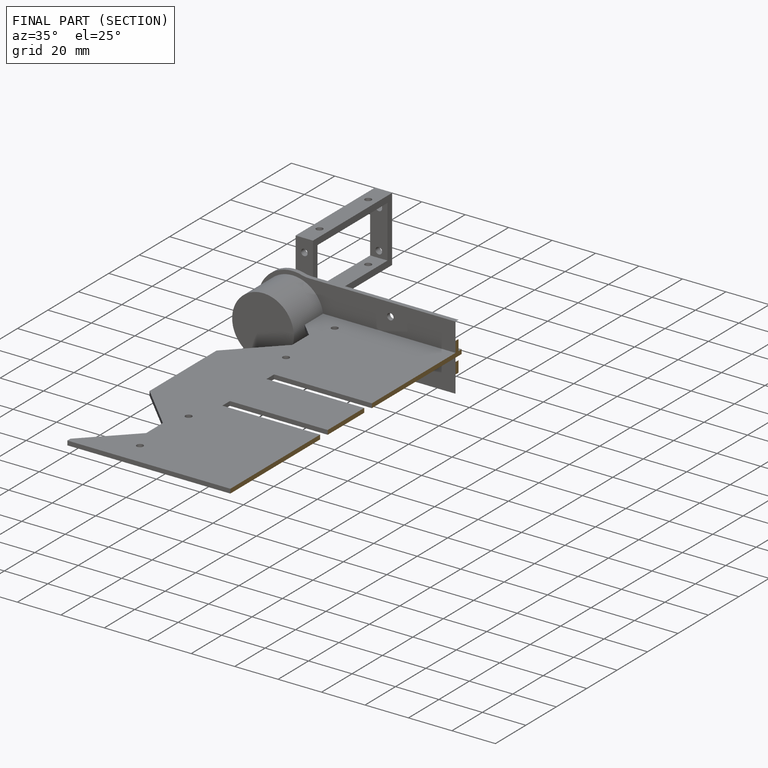
[diagram: finished part — half-section view (interior)]
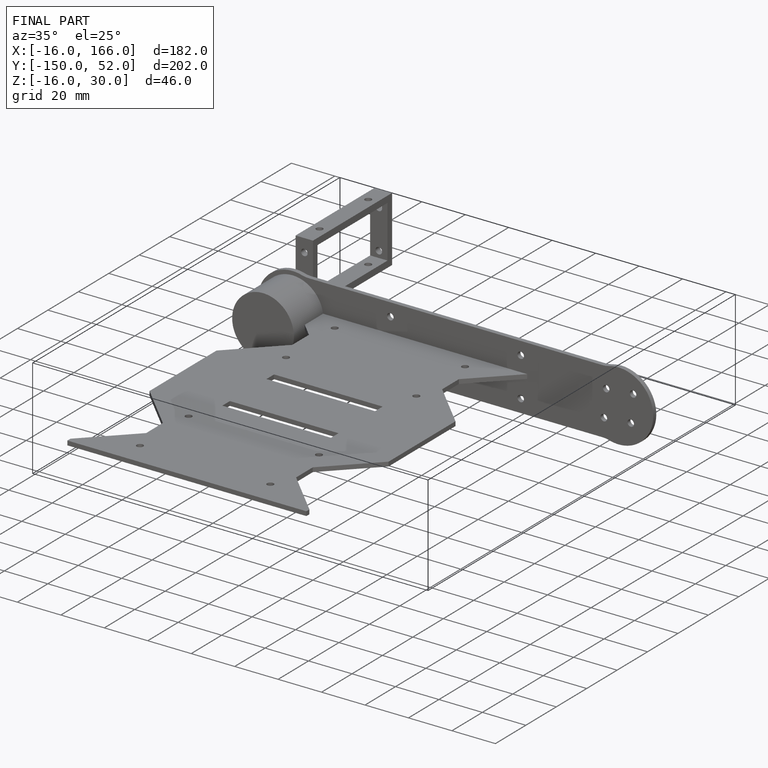
[diagram: finished part — iso view with bounding-box wireframe]
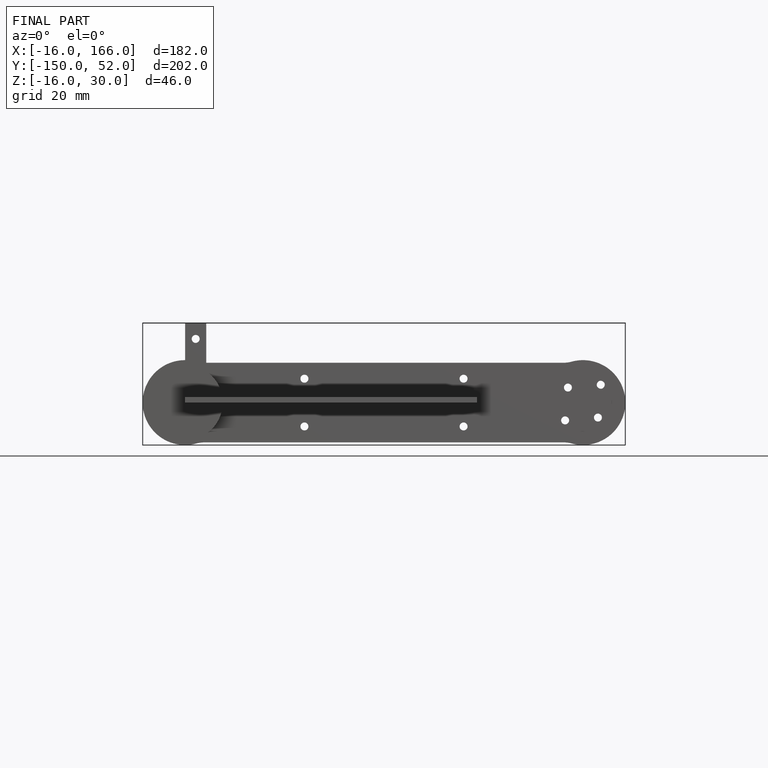
[diagram: finished part — front view with bounding-box wireframe]
